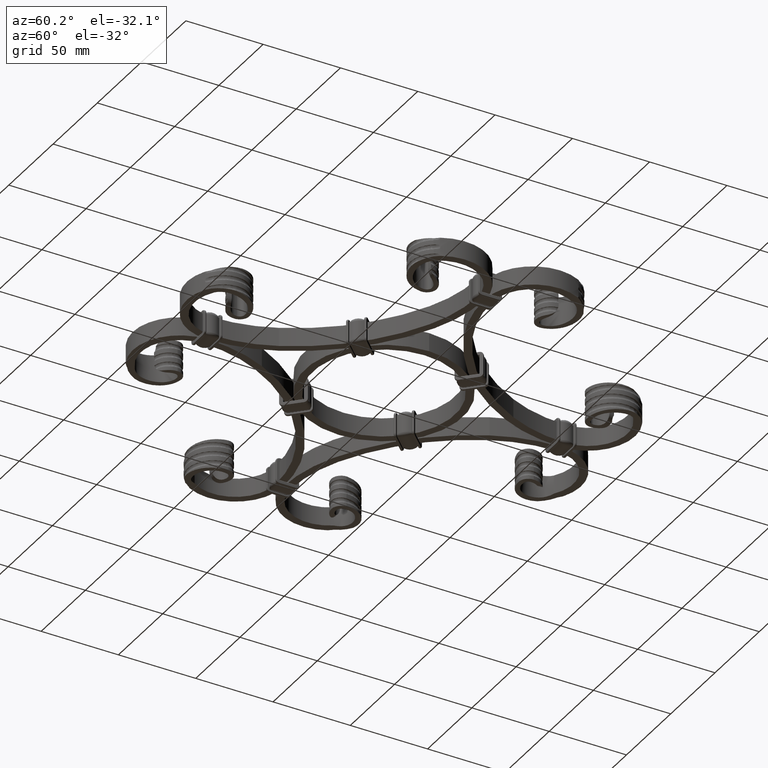
[diagram: clean part render]
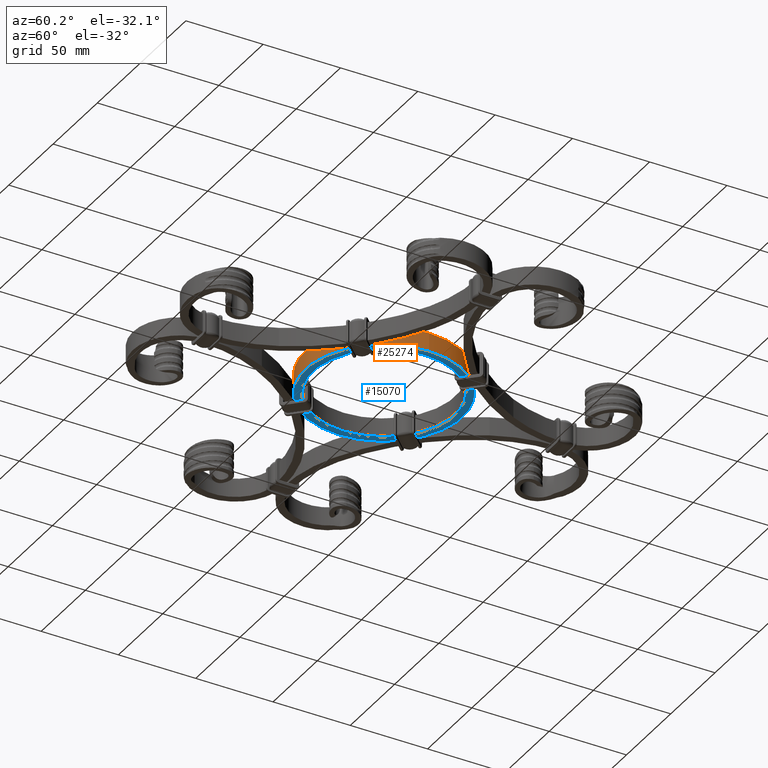
[diagram: same view with the hole feature highlighted: cylindrical wall and planar end face, labeled with their STEP entity ids]
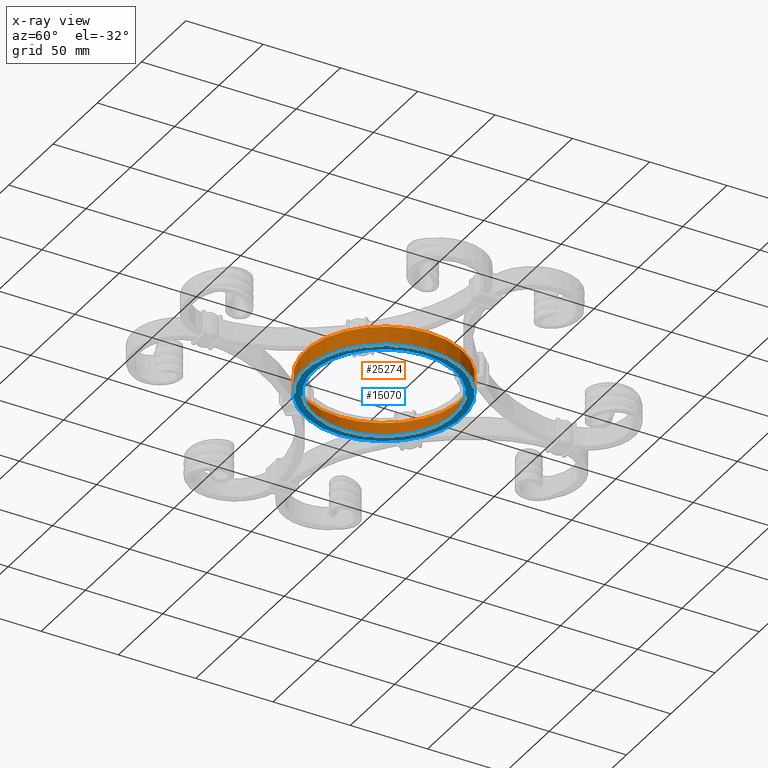
[diagram: x-ray of the same camera — body ghosted, the hole faces saturated]
A machine part, auxiliary view. The highlighted faces form one hole feature of diameter 102 mm: the cylindrical wall (entity #25274, orange) and its adjacent planar end face (entity #15070, blue) — they share a circular edge in the B-rep.
The next image is the same camera in x-ray (body ghosted, the hole faces saturated) — the bore reads through the body.
Wall:
#2399 = VERTEX_POINT ( 'NONE', #42825 ) ;
#2981 = CYLINDRICAL_SURFACE ( 'NONE', #29094, 51.00000000000000000 ) ;
#4146 = CARTESIAN_POINT ( 'NONE',  ( 51.00000000000000000, 0.000000000000000000, 6.000000000000000000 ) ) ;
#6907 = EDGE_CURVE ( 'NONE', #57492, #57492, #17185, .T. ) ;
#7487 = AXIS2_PLACEMENT_3D ( 'NONE', #28043, #8556, #40998 ) ;
#8556 = DIRECTION ( 'NONE',  ( 0.000000000000000000, 0.000000000000000000, 1.000000000000000000 ) ) ;
#9614 = DIRECTION ( 'NONE',  ( 0.000000000000000000, 0.000000000000000000, 1.000000000000000000 ) ) ;
#10269 = FACE_OUTER_BOUND ( 'NONE', #26524, .T. ) ;
#10935 = EDGE_CURVE ( 'NONE', #2399, #2399, #37095, .T. ) ;
#15352 = FACE_OUTER_BOUND ( 'NONE', #23299, .T. ) ;
#17185 = CIRCLE ( 'NONE', #25047, 51.00000000000000000 ) ;
#22598 = CARTESIAN_POINT ( 'NONE',  ( 0.000000000000000000, 0.000000000000000000, 6.000000000000000000 ) ) ;
#23008 = DIRECTION ( 'NONE',  ( -1.000000000000000000, 0.000000000000000000, 0.000000000000000000 ) ) ;
#23299 = EDGE_LOOP ( 'NONE', ( #53598 ) ) ;
#23620 = CARTESIAN_POINT ( 'NONE',  ( 0.000000000000000000, 0.000000000000000000, 6.000000000000000000 ) ) ;
#25047 = AXIS2_PLACEMENT_3D ( 'NONE', #23620, #9614, #42434 ) ;
#25274 = ADVANCED_FACE ( 'NONE', ( #15352, #10269 ), #2981, .T. ) ;
#26524 = EDGE_LOOP ( 'NONE', ( #42154 ) ) ;
#28043 = CARTESIAN_POINT ( 'NONE',  ( 0.000000000000000000, 0.000000000000000000, -6.000000000000000000 ) ) ;
#29094 = AXIS2_PLACEMENT_3D ( 'NONE', #22598, #55796, #23008 ) ;
#37095 = CIRCLE ( 'NONE', #7487, 51.00000000000000000 ) ;
#40998 = DIRECTION ( 'NONE',  ( 1.000000000000000000, 0.000000000000000000, 0.000000000000000000 ) ) ;
#42154 = ORIENTED_EDGE ( 'NONE', *, *, #10935, .T. ) ;
#42434 = DIRECTION ( 'NONE',  ( 1.000000000000000000, 0.000000000000000000, 0.000000000000000000 ) ) ;
#42825 = CARTESIAN_POINT ( 'NONE',  ( 51.00000000000000000, 0.000000000000000000, -6.000000000000000000 ) ) ;
#53598 = ORIENTED_EDGE ( 'NONE', *, *, #6907, .F. ) ;
#55796 = DIRECTION ( 'NONE',  ( -0.000000000000000000, -0.000000000000000000, -1.000000000000000000 ) ) ;
#57492 = VERTEX_POINT ( 'NONE', #4146 ) ;
End face:
#2399 = VERTEX_POINT ( 'NONE', #42825 ) ;
#5096 = ORIENTED_EDGE ( 'NONE', *, *, #10935, .F. ) ;
#7487 = AXIS2_PLACEMENT_3D ( 'NONE', #28043, #8556, #40998 ) ;
#8556 = DIRECTION ( 'NONE',  ( 0.000000000000000000, 0.000000000000000000, 1.000000000000000000 ) ) ;
#10935 = EDGE_CURVE ( 'NONE', #2399, #2399, #37095, .T. ) ;
#11766 = AXIS2_PLACEMENT_3D ( 'NONE', #44865, #41450, #32663 ) ;
#15070 = ADVANCED_FACE ( 'NONE', ( #46986, #54954 ), #30599, .F. ) ;
#28043 = CARTESIAN_POINT ( 'NONE',  ( 0.000000000000000000, 0.000000000000000000, -6.000000000000000000 ) ) ;
#30599 = PLANE ( 'NONE',  #55076 ) ;
#30792 = DIRECTION ( 'NONE',  ( 1.000000000000000000, 0.000000000000000000, -0.000000000000000000 ) ) ;
#30996 = DIRECTION ( 'NONE',  ( 0.000000000000000000, 0.000000000000000000, 1.000000000000000000 ) ) ;
#31433 = VERTEX_POINT ( 'NONE', #33685 ) ;
#32663 = DIRECTION ( 'NONE',  ( 1.000000000000000000, 0.000000000000000000, 0.000000000000000000 ) ) ;
#32696 = CIRCLE ( 'NONE', #11766, 46.00000000000000000 ) ;
#33111 = EDGE_LOOP ( 'NONE', ( #57788 ) ) ;
#33685 = CARTESIAN_POINT ( 'NONE',  ( 46.00000000000000000, 0.000000000000000000, -6.000000000000000000 ) ) ;
#37095 = CIRCLE ( 'NONE', #7487, 51.00000000000000000 ) ;
#40998 = DIRECTION ( 'NONE',  ( 1.000000000000000000, 0.000000000000000000, 0.000000000000000000 ) ) ;
#41090 = EDGE_LOOP ( 'NONE', ( #5096 ) ) ;
#41450 = DIRECTION ( 'NONE',  ( 0.000000000000000000, 0.000000000000000000, 1.000000000000000000 ) ) ;
#42825 = CARTESIAN_POINT ( 'NONE',  ( 51.00000000000000000, 0.000000000000000000, -6.000000000000000000 ) ) ;
#43741 = CARTESIAN_POINT ( 'NONE',  ( 0.000000000000000000, 0.000000000000000000, -6.000000000000000000 ) ) ;
#44865 = CARTESIAN_POINT ( 'NONE',  ( 0.000000000000000000, 0.000000000000000000, -6.000000000000000000 ) ) ;
#46986 = FACE_OUTER_BOUND ( 'NONE', #41090, .T. ) ;
#54954 = FACE_BOUND ( 'NONE', #33111, .T. ) ;
#54965 = EDGE_CURVE ( 'NONE', #31433, #31433, #32696, .T. ) ;
#55076 = AXIS2_PLACEMENT_3D ( 'NONE', #43741, #30996, #30792 ) ;
#57788 = ORIENTED_EDGE ( 'NONE', *, *, #54965, .T. ) ;